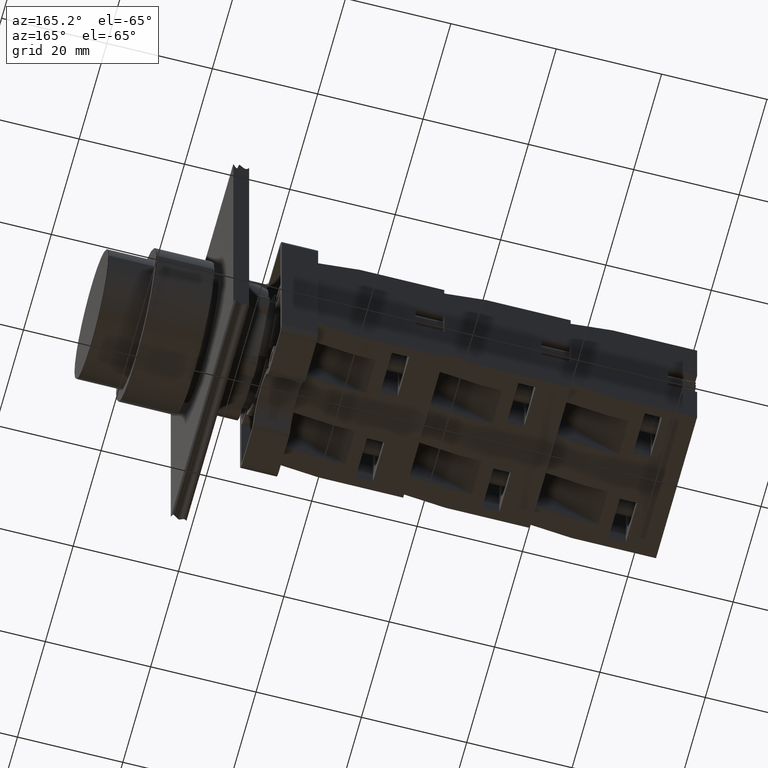
[diagram: clean part render]
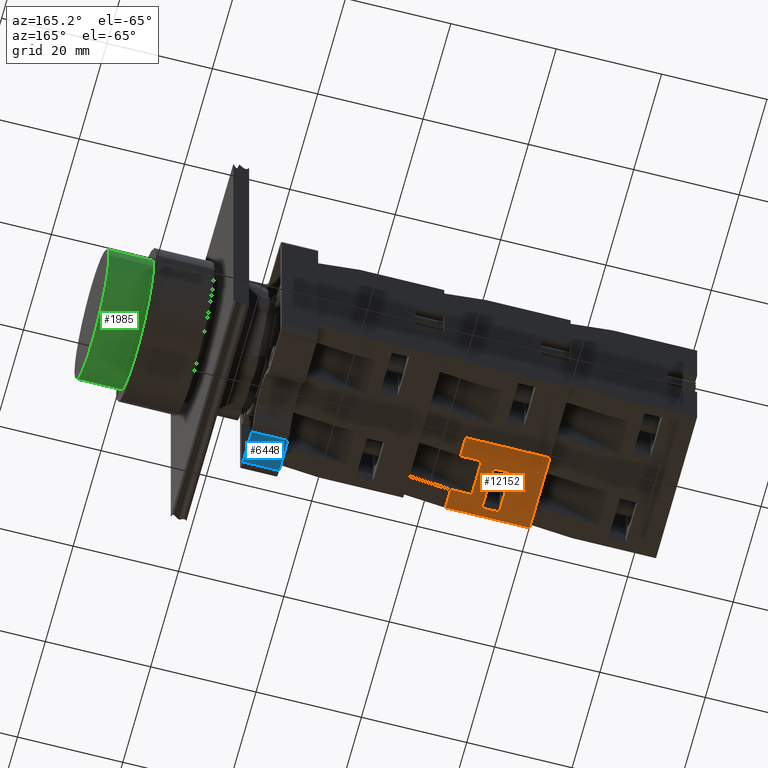
[diagram: same view with three faces highlighted in distinct colors, each labeled with its STEP entity id]
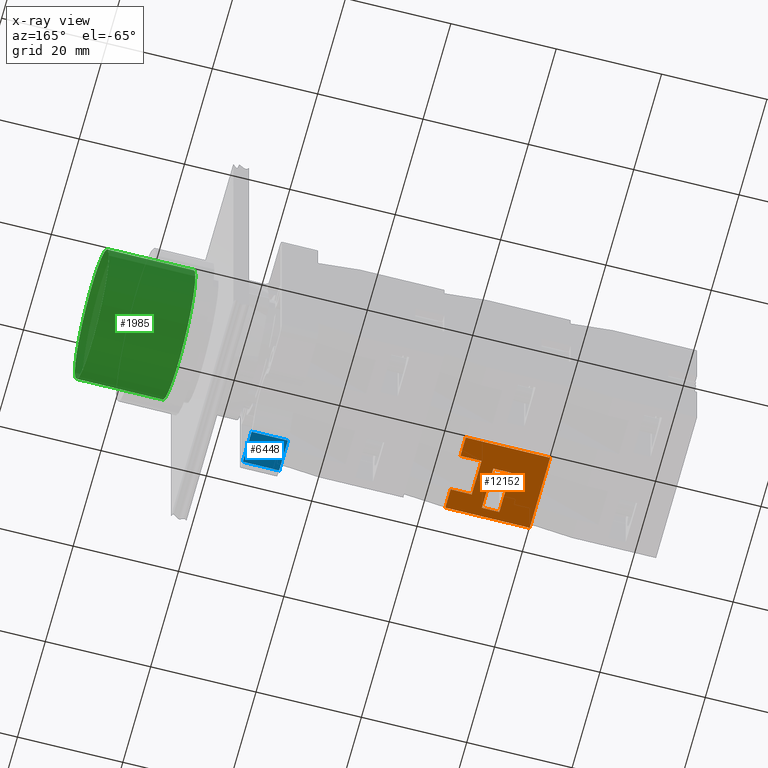
[diagram: x-ray of the same camera — body ghosted, the three highlighted faces saturated]
A machine part, auxiliary view with three faces highlighted in distinct colors.
The next image is the same camera in x-ray (body ghosted, the three faces saturated) — at least one of them is partly hidden behind the body in this view.
Their STEP definitions:

[orange] entity #12152 — the highlighted planar face has unit normal (0, 0, -1).
#11973=CARTESIAN_POINT('',(-44.936741828918457,7.797073323279618,10.850000000000000));
#11974=VERTEX_POINT('',#11973);
#11983=CARTESIAN_POINT('',(-44.936741828918457,11.797073323279610,10.850000000000000));
#11984=VERTEX_POINT('',#11983);
#11985=CARTESIAN_POINT('',(-44.936741828918457,11.797073323279610,10.850000000000000));
#11986=DIRECTION('',(0.0,-1.0,0.0));
#11987=VECTOR('',#11986,3.999999999999992);
#11988=LINE('',#11985,#11987);
#11989=EDGE_CURVE('',#11984,#11974,#11988,.T.);
#12013=CARTESIAN_POINT('',(-44.936741828918457,11.797073323279610,3.850000000000001));
#12014=VERTEX_POINT('',#12013);
#12030=CARTESIAN_POINT('',(-44.936741828918457,11.797073323279610,3.850000000000001));
#12031=DIRECTION('',(0.0,0.0,1.0));
#12032=VECTOR('',#12031,6.999999999999999);
#12033=LINE('',#12030,#12032);
#12034=EDGE_CURVE('',#12014,#11984,#12033,.T.);
#12046=CARTESIAN_POINT('',(-44.936741828918457,7.797073323279618,3.850000000000000));
#12047=VERTEX_POINT('',#12046);
#12061=CARTESIAN_POINT('',(-44.936741828918457,7.797073323279618,3.850000000000000));
#12062=DIRECTION('',(0.0,1.0,0.0));
#12063=VECTOR('',#12062,3.999999999999992);
#12064=LINE('',#12061,#12063);
#12065=EDGE_CURVE('',#12047,#12014,#12064,.T.);
#12070=CARTESIAN_POINT('',(-44.936741828918457,7.797073323279626,0.0));
#12071=DIRECTION('',(-1.0,0.0,0.0));
#12072=DIRECTION('',(0.0,0.0,1.0));
#12073=AXIS2_PLACEMENT_3D('',#12070,#12071,#12072);
#12074=PLANE('',#12073);
#12075=ORIENTED_EDGE('',*,*,#12065,.T.);
#12076=ORIENTED_EDGE('',*,*,#12034,.T.);
#12077=ORIENTED_EDGE('',*,*,#11989,.T.);
#12078=CARTESIAN_POINT('',(-44.936741828918457,7.797073323279626,14.699999999999999));
#12079=VERTEX_POINT('',#12078);
#12080=CARTESIAN_POINT('',(-44.936741828918457,7.797073323279618,10.850000000000000));
#12081=DIRECTION('',(0.0,0.0,1.0));
#12082=VECTOR('',#12081,3.850000000000000);
#12083=LINE('',#12080,#12082);
#12084=EDGE_CURVE('',#11974,#12079,#12083,.T.);
#12085=ORIENTED_EDGE('',*,*,#12084,.T.);
#12086=CARTESIAN_POINT('',(-44.936741828918471,23.797073323279623,14.699999999999999));
#12087=VERTEX_POINT('',#12086);
#12088=CARTESIAN_POINT('',(-44.936741828918457,7.797073323279626,14.699999999999999));
#12089=DIRECTION('',(0.0,1.0,0.0));
#12090=VECTOR('',#12089,15.999999999999996);
#12091=LINE('',#12088,#12090);
#12092=EDGE_CURVE('',#12079,#12087,#12091,.T.);
#12093=ORIENTED_EDGE('',*,*,#12092,.T.);
#12094=CARTESIAN_POINT('',(-44.936741828918471,23.797073323279623,0.0));
#12095=VERTEX_POINT('',#12094);
#12096=CARTESIAN_POINT('',(-44.936741828918471,23.797073323279623,0.0));
#12097=DIRECTION('',(0.0,0.0,1.0));
#12098=VECTOR('',#12097,14.699999999999999);
#12099=LINE('',#12096,#12098);
#12100=EDGE_CURVE('',#12095,#12087,#12099,.T.);
#12101=ORIENTED_EDGE('',*,*,#12100,.F.);
#12102=CARTESIAN_POINT('',(-44.936741828918457,7.797073323279626,0.0));
#12103=VERTEX_POINT('',#12102);
#12104=CARTESIAN_POINT('',(-44.936741828918457,7.797073323279626,0.0));
#12105=DIRECTION('',(0.0,1.0,0.0));
#12106=VECTOR('',#12105,15.999999999999996);
#12107=LINE('',#12104,#12106);
#12108=EDGE_CURVE('',#12103,#12095,#12107,.T.);
#12109=ORIENTED_EDGE('',*,*,#12108,.F.);
#12110=CARTESIAN_POINT('',(-44.936741828918457,7.797073323279626,0.0));
#12111=DIRECTION('',(0.0,0.0,1.0));
#12112=VECTOR('',#12111,3.850000000000000);
#12113=LINE('',#12110,#12112);
#12114=EDGE_CURVE('',#12103,#12047,#12113,.T.);
#12115=ORIENTED_EDGE('',*,*,#12114,.T.);
#12116=EDGE_LOOP('',(#12075,#12076,#12077,#12085,#12093,#12101,#12109,#12115));
#12117=FACE_OUTER_BOUND('',#12116,.T.);
#12118=CARTESIAN_POINT('',(-44.936741828918457,14.297073323279621,4.800000000000002));
#12119=VERTEX_POINT('',#12118);
#12120=CARTESIAN_POINT('',(-44.936741828918471,17.597073323279623,4.800000000000001));
#12121=VERTEX_POINT('',#12120);
#12122=CARTESIAN_POINT('',(-44.936741828918457,14.297073323279621,4.800000000000002));
#12123=DIRECTION('',(0.0,1.0,0.0));
#12124=VECTOR('',#12123,3.300000000000003);
#12125=LINE('',#12122,#12124);
#12126=EDGE_CURVE('',#12119,#12121,#12125,.T.);
#12127=ORIENTED_EDGE('',*,*,#12126,.T.);
#12128=CARTESIAN_POINT('',(-44.936741828918471,17.597073323279623,13.0));
#12129=VERTEX_POINT('',#12128);
#12130=CARTESIAN_POINT('',(-44.936741828918471,17.597073323279623,4.800000000000001));
#12131=DIRECTION('',(0.0,0.0,1.0));
#12132=VECTOR('',#12131,8.199999999999999);
#12133=LINE('',#12130,#12132);
#12134=EDGE_CURVE('',#12121,#12129,#12133,.T.);
#12135=ORIENTED_EDGE('',*,*,#12134,.T.);
#12136=CARTESIAN_POINT('',(-44.936741828918457,14.297073323279623,13.0));
#12137=VERTEX_POINT('',#12136);
#12138=CARTESIAN_POINT('',(-44.936741828918471,17.597073323279623,13.0));
#12139=DIRECTION('',(0.0,-1.0,0.0));
#12140=VECTOR('',#12139,3.300000000000001);
#12141=LINE('',#12138,#12140);
#12142=EDGE_CURVE('',#12129,#12137,#12141,.T.);
#12143=ORIENTED_EDGE('',*,*,#12142,.T.);
#12144=CARTESIAN_POINT('',(-44.936741828918457,14.297073323279623,13.0));
#12145=DIRECTION('',(0.0,0.0,-1.0));
#12146=VECTOR('',#12145,8.199999999999999);
#12147=LINE('',#12144,#12146);
#12148=EDGE_CURVE('',#12137,#12119,#12147,.T.);
#12149=ORIENTED_EDGE('',*,*,#12148,.T.);
#12150=EDGE_LOOP('',(#12127,#12135,#12143,#12149));
#12151=FACE_BOUND('',#12150,.T.);
#12152=ADVANCED_FACE('',(#12117,#12151),#12074,.T.);

[blue] entity #6448 — the highlighted planar face has unit normal (0, -0, -1).
#3218=CARTESIAN_POINT('',(1.810373395952843,-23.547403233199361,0.0));
#3219=VERTEX_POINT('',#3218);
#3227=CARTESIAN_POINT('',(-4.481422671547789,-23.547403233199361,0.0));
#3228=VERTEX_POINT('',#3227);
#3229=CARTESIAN_POINT('',(1.810373395952843,-23.547403233199361,0.0));
#3230=DIRECTION('',(-1.0,0.0,0.0));
#3231=VECTOR('',#3230,6.291796067500632);
#3232=LINE('',#3229,#3231);
#3233=EDGE_CURVE('',#3219,#3228,#3232,.T.);
#6405=CARTESIAN_POINT('',(1.810373395952843,-23.547403233199361,6.900000000000000));
#6406=VERTEX_POINT('',#6405);
#6414=CARTESIAN_POINT('',(1.810373395952843,-23.547403233199361,0.0));
#6415=DIRECTION('',(0.0,0.0,1.0));
#6416=VECTOR('',#6415,6.900000000000000);
#6417=LINE('',#6414,#6416);
#6418=EDGE_CURVE('',#3219,#6406,#6417,.T.);
#6425=CARTESIAN_POINT('',(1.810373395952843,-23.547403233199361,0.0));
#6426=DIRECTION('',(0.0,-1.0,0.0));
#6427=DIRECTION('',(0.0,0.0,-1.0));
#6428=AXIS2_PLACEMENT_3D('',#6425,#6426,#6427);
#6429=PLANE('',#6428);
#6430=CARTESIAN_POINT('',(-4.481422671547789,-23.547403233199361,6.900000000000000));
#6431=VERTEX_POINT('',#6430);
#6432=CARTESIAN_POINT('',(1.810373395952843,-23.547403233199361,6.900000000000000));
#6433=DIRECTION('',(-1.0,0.0,0.0));
#6434=VECTOR('',#6433,6.291796067500632);
#6435=LINE('',#6432,#6434);
#6436=EDGE_CURVE('',#6406,#6431,#6435,.T.);
#6437=ORIENTED_EDGE('',*,*,#6436,.T.);
#6438=CARTESIAN_POINT('',(-4.481422671547789,-23.547403233199361,0.0));
#6439=DIRECTION('',(0.0,0.0,1.0));
#6440=VECTOR('',#6439,6.900000000000000);
#6441=LINE('',#6438,#6440);
#6442=EDGE_CURVE('',#3228,#6431,#6441,.T.);
#6443=ORIENTED_EDGE('',*,*,#6442,.F.);
#6444=ORIENTED_EDGE('',*,*,#3233,.F.);
#6445=ORIENTED_EDGE('',*,*,#6418,.T.);
#6446=EDGE_LOOP('',(#6437,#6443,#6444,#6445));
#6447=FACE_OUTER_BOUND('',#6446,.T.);
#6448=ADVANCED_FACE('',(#6447),#6429,.T.);

[green] entity #1985 — the highlighted cylindrical surface (bore or boss wall) has radius 12.25 mm, axis along (1, 0, 0).
#1954=CARTESIAN_POINT('',(-7.751189470786497,12.830485430137324,0.0));
#1955=VERTEX_POINT('',#1954);
#1956=CARTESIAN_POINT('',(-7.751189470786497,0.580485430137330,0.0));
#1957=DIRECTION('',(1.0,0.0,0.0));
#1958=DIRECTION('',(0.0,1.0,0.0));
#1959=AXIS2_PLACEMENT_3D('',#1956,#1957,#1958);
#1960=CIRCLE('',#1959,12.249999999999995);
#1961=EDGE_CURVE('',#1955,#1955,#1960,.T.);
#1966=CARTESIAN_POINT('',(0.448810529213506,0.580485430137330,0.0));
#1967=DIRECTION('',(1.0,0.0,0.0));
#1968=DIRECTION('',(0.0,1.0,0.0));
#1969=AXIS2_PLACEMENT_3D('',#1966,#1967,#1968);
#1970=CYLINDRICAL_SURFACE('',#1969,12.249999999999998);
#1971=CARTESIAN_POINT('',(8.648810529213506,12.830485430137333,0.0));
#1972=VERTEX_POINT('',#1971);
#1973=CARTESIAN_POINT('',(8.648810529213510,0.580485430137330,0.0));
#1974=DIRECTION('',(1.0,0.0,0.0));
#1975=DIRECTION('',(0.0,1.0,0.0));
#1976=AXIS2_PLACEMENT_3D('',#1973,#1974,#1975);
#1977=CIRCLE('',#1976,12.250000000000004);
#1978=EDGE_CURVE('',#1972,#1972,#1977,.T.);
#1979=ORIENTED_EDGE('',*,*,#1978,.F.);
#1980=EDGE_LOOP('',(#1979));
#1981=FACE_OUTER_BOUND('',#1980,.T.);
#1982=ORIENTED_EDGE('',*,*,#1961,.T.);
#1983=EDGE_LOOP('',(#1982));
#1984=FACE_BOUND('',#1983,.T.);
#1985=ADVANCED_FACE('',(#1981,#1984),#1970,.T.);